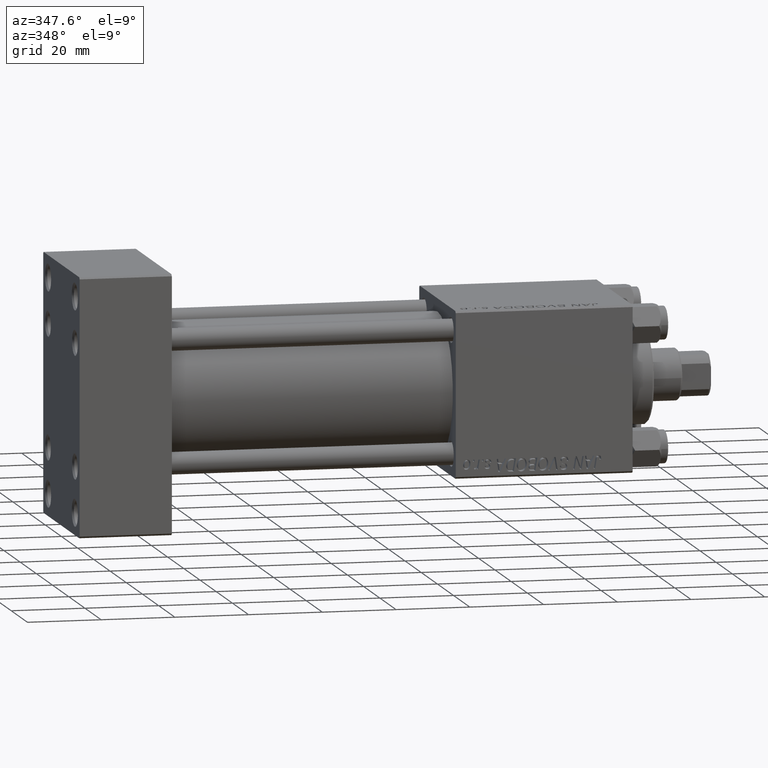
[diagram: clean part render]
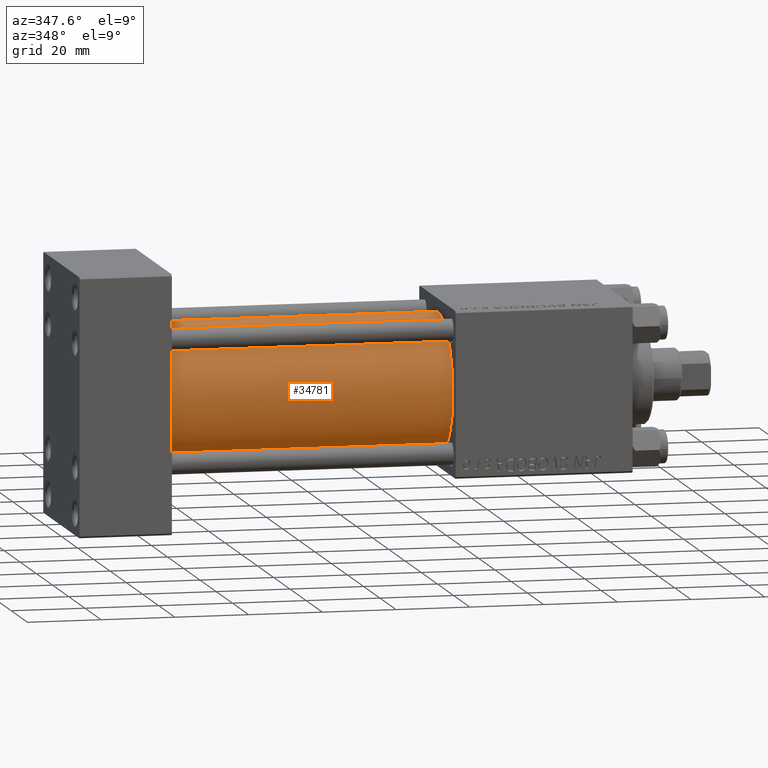
[diagram: same view with one face highlighted and labeled with its STEP entity id]
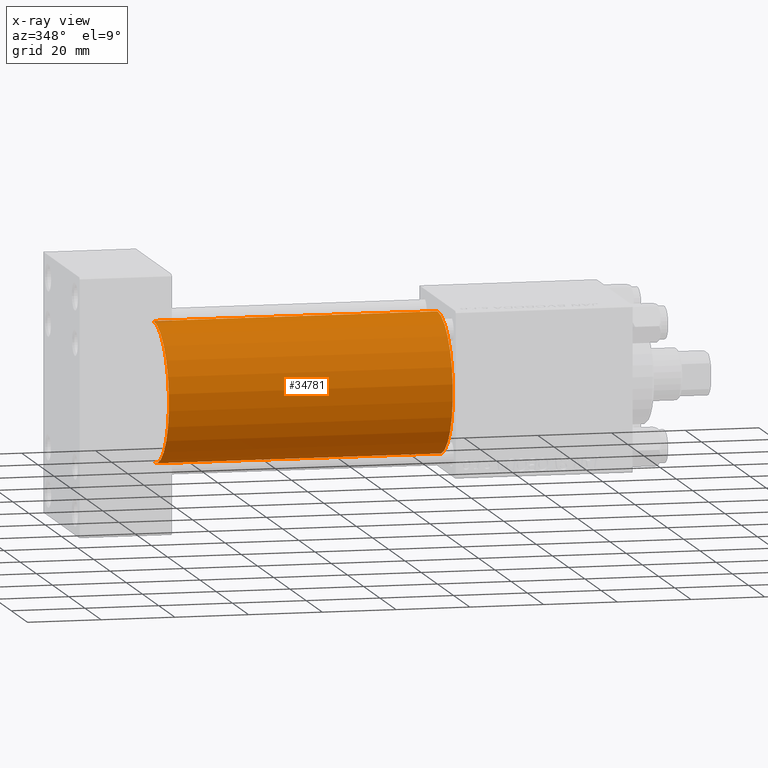
[diagram: x-ray of the same camera — body ghosted, the highlighted face saturated]
A machine part, auxiliary view. The second image highlights one B-rep face of the part: STEP entity #34781.
The next image is the same camera in x-ray: the body ghosted, the highlighted face saturated — about 0% of this face is hidden behind the body in this view.
In plain terms, the highlighted cylindrical surface (partial cylindrical patch) has radius 19 mm, axis along (-1, -0, -0).
Its self-contained STEP definition (entity closure, byte-faithful):
#65 = CARTESIAN_POINT ( 'NONE',  ( 102.0000000000000142, -2.602085213965210642E-15, 19.00000000000000000 ) ) ;
#904 = VERTEX_POINT ( 'NONE', #34688 ) ;
#3599 = AXIS2_PLACEMENT_3D ( 'NONE', #32399, #17522, #25083 ) ;
#4876 = DIRECTION ( 'NONE',  ( 1.000000000000000000, 0.000000000000000000, 0.000000000000000000 ) ) ;
#5394 = VERTEX_POINT ( 'NONE', #11633 ) ;
#6800 = CARTESIAN_POINT ( 'NONE',  ( 102.0000000000000142, -2.752562955852396712E-16, -19.00000000000000000 ) ) ;
#10638 = CARTESIAN_POINT ( 'NONE',  ( 102.0000000000000142, -2.602085213965210642E-15, 0.000000000000000000 ) ) ;
#11269 = ORIENTED_EDGE ( 'NONE', *, *, #28259, .T. ) ;
#11633 = CARTESIAN_POINT ( 'NONE',  ( 24.99999999999999289, -2.602085213965210642E-15, 19.00000000000000000 ) ) ;
#11821 = VECTOR ( 'NONE', #28192, 1000.000000000000000 ) ;
#13094 = EDGE_CURVE ( 'NONE', #50008, #5394, #44609, .T. ) ;
#13763 = ORIENTED_EDGE ( 'NONE', *, *, #13094, .T. ) ;
#13912 = DIRECTION ( 'NONE',  ( -1.000000000000000000, -0.000000000000000000, -0.000000000000000000 ) ) ;
#14662 = EDGE_CURVE ( 'NONE', #50008, #15005, #40827, .T. ) ;
#15005 = VERTEX_POINT ( 'NONE', #6800 ) ;
#15780 = DIRECTION ( 'NONE',  ( 0.000000000000000000, 0.000000000000000000, -1.000000000000000000 ) ) ;
#16921 = ORIENTED_EDGE ( 'NONE', *, *, #14662, .F. ) ;
#17522 = DIRECTION ( 'NONE',  ( 1.000000000000000000, -0.000000000000000000, 0.000000000000000000 ) ) ;
#19717 = VECTOR ( 'NONE', #13912, 1000.000000000000000 ) ;
#21499 = CARTESIAN_POINT ( 'NONE',  ( 102.0000000000000142, -2.752562955852396712E-16, -19.00000000000000000 ) ) ;
#23359 = EDGE_LOOP ( 'NONE', ( #39454, #16921, #13763, #11269 ) ) ;
#24320 = FACE_OUTER_BOUND ( 'NONE', #23359, .T. ) ;
#24815 = AXIS2_PLACEMENT_3D ( 'NONE', #10638, #37936, #29336 ) ;
#25083 = DIRECTION ( 'NONE',  ( 0.000000000000000000, 0.000000000000000000, 1.000000000000000000 ) ) ;
#26290 = AXIS2_PLACEMENT_3D ( 'NONE', #39258, #4876, #15780 ) ;
#28192 = DIRECTION ( 'NONE',  ( -1.000000000000000000, -0.000000000000000000, -0.000000000000000000 ) ) ;
#28259 = EDGE_CURVE ( 'NONE', #5394, #904, #37471, .T. ) ;
#29336 = DIRECTION ( 'NONE',  ( 0.000000000000000000, 0.000000000000000000, 1.000000000000000000 ) ) ;
#32399 = CARTESIAN_POINT ( 'NONE',  ( 24.99999999999999289, -2.602085213965210642E-15, 0.000000000000000000 ) ) ;
#34688 = CARTESIAN_POINT ( 'NONE',  ( 24.99999999999999289, -2.752562955852396712E-16, -19.00000000000000000 ) ) ;
#34781 = ADVANCED_FACE ( 'NONE', ( #24320 ), #39719, .T. ) ;
#36034 = CARTESIAN_POINT ( 'NONE',  ( 102.0000000000000142, -2.602085213965210642E-15, 19.00000000000000000 ) ) ;
#37471 = CIRCLE ( 'NONE', #3599, 19.00000000000000000 ) ;
#37936 = DIRECTION ( 'NONE',  ( -1.000000000000000000, -0.000000000000000000, -0.000000000000000000 ) ) ;
#39258 = CARTESIAN_POINT ( 'NONE',  ( 102.0000000000000142, -2.602085213965210642E-15, 0.000000000000000000 ) ) ;
#39454 = ORIENTED_EDGE ( 'NONE', *, *, #49257, .F. ) ;
#39719 = CYLINDRICAL_SURFACE ( 'NONE', #24815, 19.00000000000000000 ) ;
#40697 = LINE ( 'NONE', #21499, #19717 ) ;
#40827 = CIRCLE ( 'NONE', #26290, 19.00000000000000000 ) ;
#44609 = LINE ( 'NONE', #36034, #11821 ) ;
#49257 = EDGE_CURVE ( 'NONE', #15005, #904, #40697, .T. ) ;
#50008 = VERTEX_POINT ( 'NONE', #65 ) ;